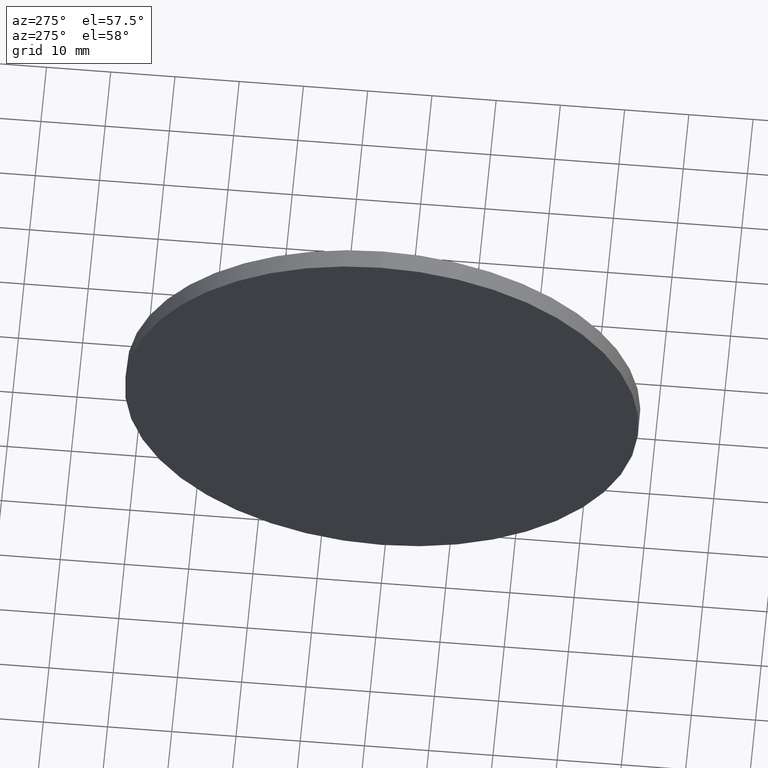
[diagram: clean part render]
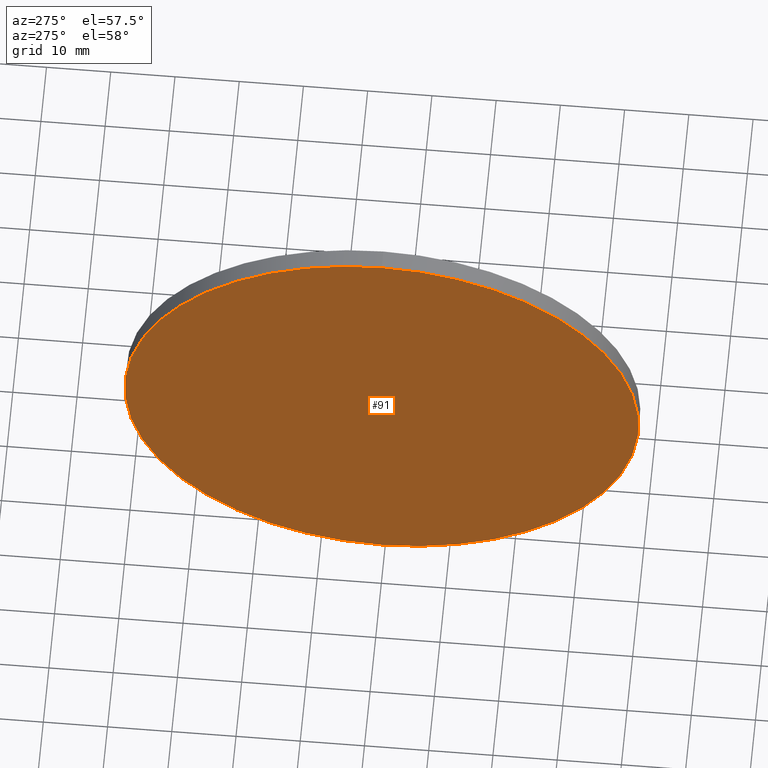
[diagram: same view with one face highlighted and labeled with its STEP entity id]
A machine part, auxiliary view. The second image highlights one B-rep face of the part: STEP entity #91.
In plain terms, the highlighted planar face has unit normal (1, 0, 0).
Its self-contained STEP definition (entity closure, byte-faithful):
#4 = CARTESIAN_POINT ( 'NONE',  ( 225.9490942240209100, 130.4671098528244200, 0.0000000000000000000 ) ) ;
#16 = CIRCLE ( 'NONE', #176, 40.00000000000000700 ) ;
#18 = DIRECTION ( 'NONE',  ( -1.000000000000000000, -0.0000000000000000000, -0.0000000000000000000 ) ) ;
#26 = VERTEX_POINT ( 'NONE', #142 ) ;
#33 = CIRCLE ( 'NONE', #146, 40.00000000000000700 ) ;
#41 = ORIENTED_EDGE ( 'NONE', *, *, #159, .T. ) ;
#58 = DIRECTION ( 'NONE',  ( 0.0000000000000000000, 0.0000000000000000000, 1.000000000000000000 ) ) ;
#64 = AXIS2_PLACEMENT_3D ( 'NONE', #72, #138, #114 ) ;
#72 = CARTESIAN_POINT ( 'NONE',  ( 225.9490942240209100, 130.4671098528244200, 0.0000000000000000000 ) ) ;
#73 = EDGE_LOOP ( 'NONE', ( #41, #153 ) ) ;
#81 = VERTEX_POINT ( 'NONE', #117 ) ;
#91 = ADVANCED_FACE ( 'NONE', ( #93 ), #185, .F. ) ;
#93 = FACE_OUTER_BOUND ( 'NONE', #73, .T. ) ;
#99 = DIRECTION ( 'NONE',  ( -1.000000000000000000, -0.0000000000000000000, -0.0000000000000000000 ) ) ;
#114 = DIRECTION ( 'NONE',  ( 0.0000000000000000000, 0.0000000000000000000, -1.000000000000000000 ) ) ;
#117 = CARTESIAN_POINT ( 'NONE',  ( 225.9490942240209100, 130.4671098528244200, 40.00000000000000700 ) ) ;
#120 = DIRECTION ( 'NONE',  ( 0.0000000000000000000, 0.0000000000000000000, 1.000000000000000000 ) ) ;
#136 = EDGE_CURVE ( 'NONE', #26, #81, #33, .T. ) ;
#138 = DIRECTION ( 'NONE',  ( 1.000000000000000000, 0.0000000000000000000, 0.0000000000000000000 ) ) ;
#142 = CARTESIAN_POINT ( 'NONE',  ( 225.9490942240209100, 130.4671098528244200, -40.00000000000000700 ) ) ;
#146 = AXIS2_PLACEMENT_3D ( 'NONE', #4, #99, #58 ) ;
#153 = ORIENTED_EDGE ( 'NONE', *, *, #136, .T. ) ;
#159 = EDGE_CURVE ( 'NONE', #81, #26, #16, .T. ) ;
#174 = CARTESIAN_POINT ( 'NONE',  ( 225.9490942240209100, 130.4671098528244200, 0.0000000000000000000 ) ) ;
#176 = AXIS2_PLACEMENT_3D ( 'NONE', #174, #18, #120 ) ;
#185 = PLANE ( 'NONE',  #64 ) ;